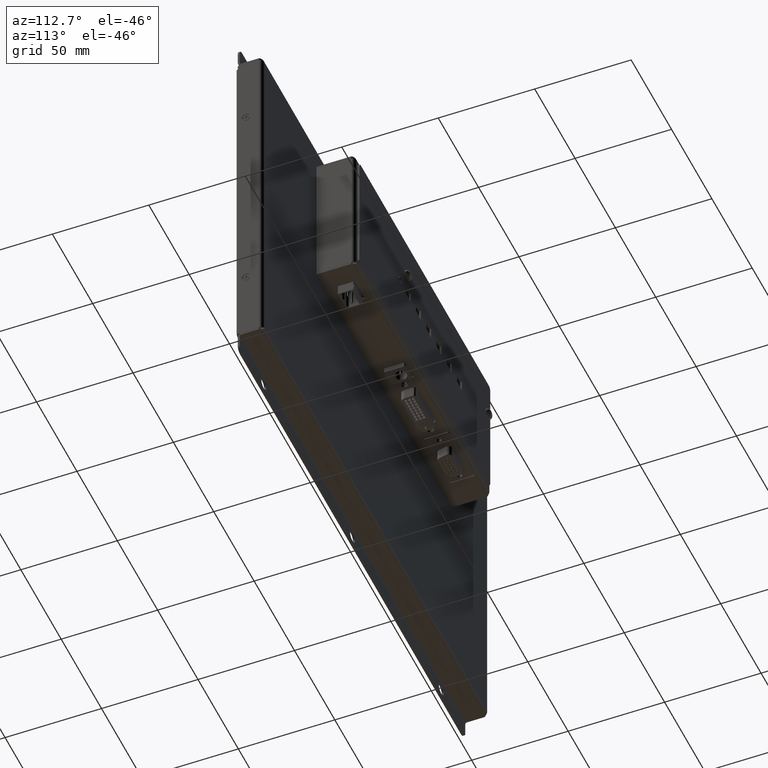
[diagram: clean part render]
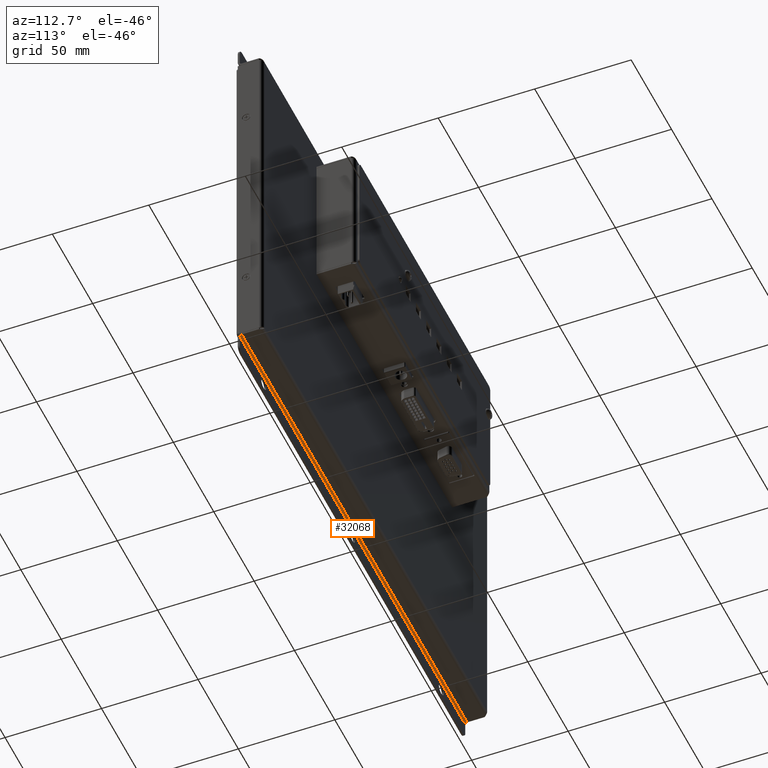
[diagram: same view with one face highlighted and labeled with its STEP entity id]
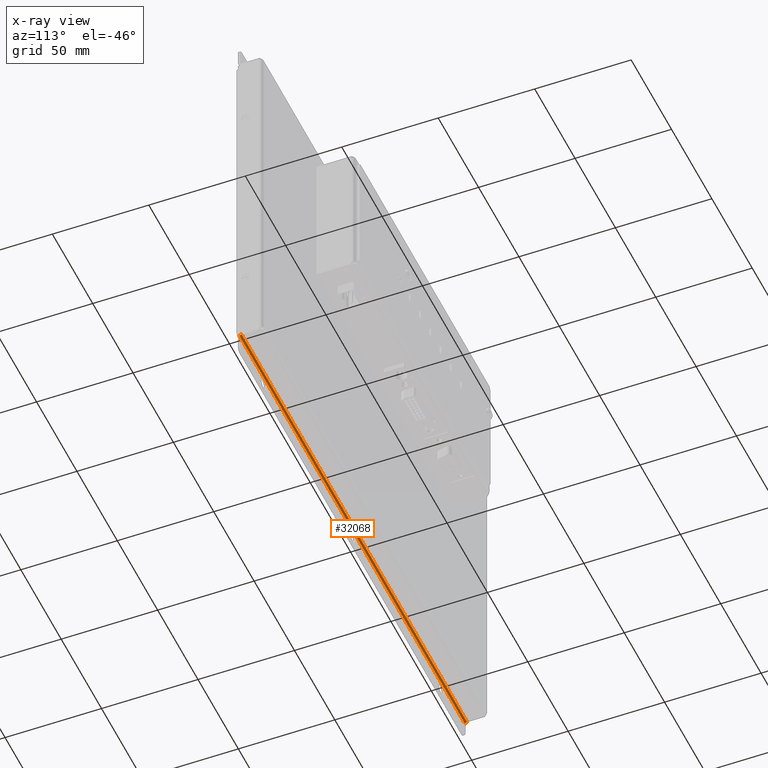
[diagram: x-ray of the same camera — body ghosted, the highlighted face saturated]
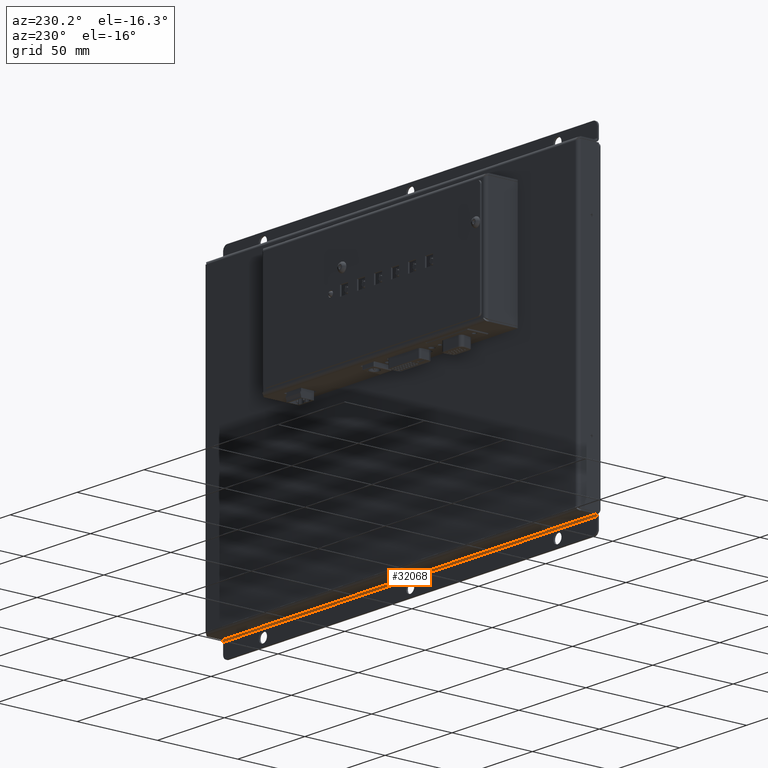
[diagram: same view with one face highlighted and labeled with its STEP entity id]
A machine part, auxiliary view. The second image highlights one B-rep face of the part: STEP entity #32068.
The next image is the same camera in x-ray: the body ghosted, the highlighted face saturated — about 0% of this face is hidden behind the body in this view.
A second angle (auxiliary view) of the same face is appended — the face is thin or edge-on in the first view.
In plain terms, the highlighted cylindrical surface (edge-blend (fillet) strip) has radius 1 mm, axis along (1, 0, 0).
Its self-contained STEP definition (entity closure, byte-faithful):
#2413=CYLINDRICAL_SURFACE('',#35249,0.999999999999996);
#4038=FACE_OUTER_BOUND('',#6022,.T.);
#6022=EDGE_LOOP('',(#28597,#28598,#28599,#28600));
#8906=LINE('',#55199,#11825);
#8928=LINE('',#55263,#11847);
#11825=VECTOR('',#43326,10.);
#11847=VECTOR('',#43394,10.);
#13106=CIRCLE('',#35245,0.999999999999961);
#13107=CIRCLE('',#35247,0.999999999999961);
#15902=VERTEX_POINT('',#55196);
#15903=VERTEX_POINT('',#55198);
#15921=VERTEX_POINT('',#55254);
#15922=VERTEX_POINT('',#55258);
#20149=EDGE_CURVE('',#15902,#15903,#8906,.T.);
#20177=EDGE_CURVE('',#15921,#15903,#13106,.T.);
#20180=EDGE_CURVE('',#15922,#15902,#13107,.T.);
#20181=EDGE_CURVE('',#15921,#15922,#8928,.T.);
#28597=ORIENTED_EDGE('',*,*,#20149,.F.);
#28598=ORIENTED_EDGE('',*,*,#20180,.F.);
#28599=ORIENTED_EDGE('',*,*,#20181,.F.);
#28600=ORIENTED_EDGE('',*,*,#20177,.T.);
#32068=ADVANCED_FACE('',(#4038),#2413,.F.);
#35245=AXIS2_PLACEMENT_3D('',#55255,#43382,#43383);
#35247=AXIS2_PLACEMENT_3D('',#55260,#43388,#43389);
#35249=AXIS2_PLACEMENT_3D('',#55262,#43392,#43393);
#43326=DIRECTION('',(-1.,5.51649196810789E-19,5.51649196810783E-19));
#43382=DIRECTION('center_axis',(-1.,5.51649196810786E-19,7.85471270625152E-34));
#43383=DIRECTION('ref_axis',(0.,1.,3.3306690738756E-15));
#43388=DIRECTION('center_axis',(-1.,5.51649196810786E-19,7.85471270625152E-34));
#43389=DIRECTION('ref_axis',(0.,1.,3.3306690738756E-15));
#43392=DIRECTION('center_axis',(-1.,5.51649196810786E-19,7.85471270625152E-34));
#43393=DIRECTION('ref_axis',(5.51649196810786E-19,1.,1.42386008203428E-15));
#43394=DIRECTION('',(1.,-5.51649196810786E-19,-1.22490727963062E-33));
#55196=CARTESIAN_POINT('',(139.75,-94.2499999999999,-10.9999999999999));
#55198=CARTESIAN_POINT('',(-139.75,-94.2499999999999,-10.9999999999999));
#55199=CARTESIAN_POINT('',(1.5126237061321E-14,-94.2499999999999,-11.));
#55254=CARTESIAN_POINT('',(-139.75,-93.25,-9.99999999999999));
#55255=CARTESIAN_POINT('Origin',(-139.75,-94.2499999999999,-9.99999999999999));
#55258=CARTESIAN_POINT('',(139.75,-93.25,-9.99999999999999));
#55260=CARTESIAN_POINT('Origin',(139.75,-94.2499999999999,-9.99999999999999));
#55262=CARTESIAN_POINT('Origin',(1.77627740191591E-14,-94.2499999999999,
-9.99999999999999));
#55263=CARTESIAN_POINT('',(69.875,-93.25,-9.99999999999999));